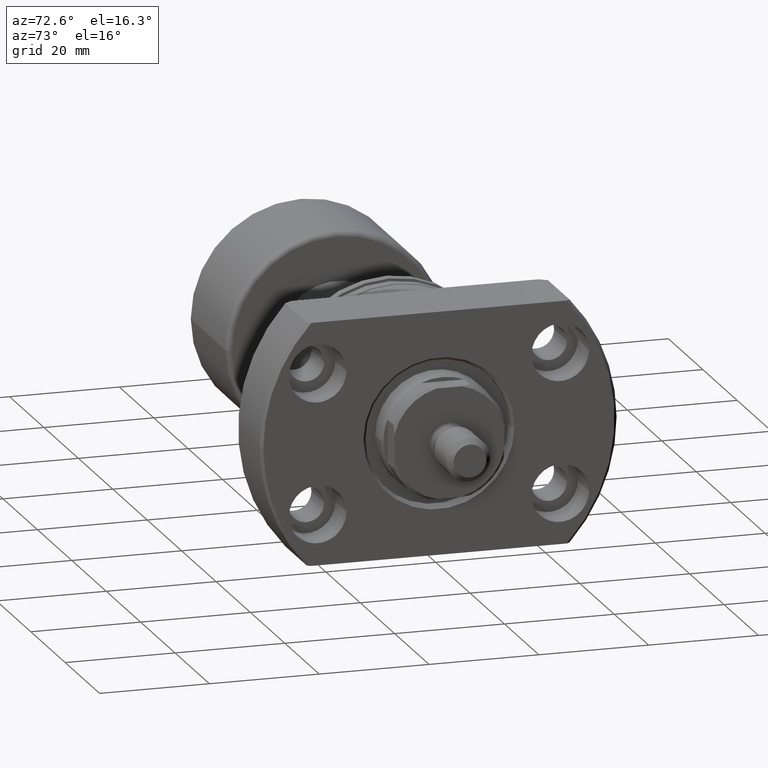
[diagram: clean part render]
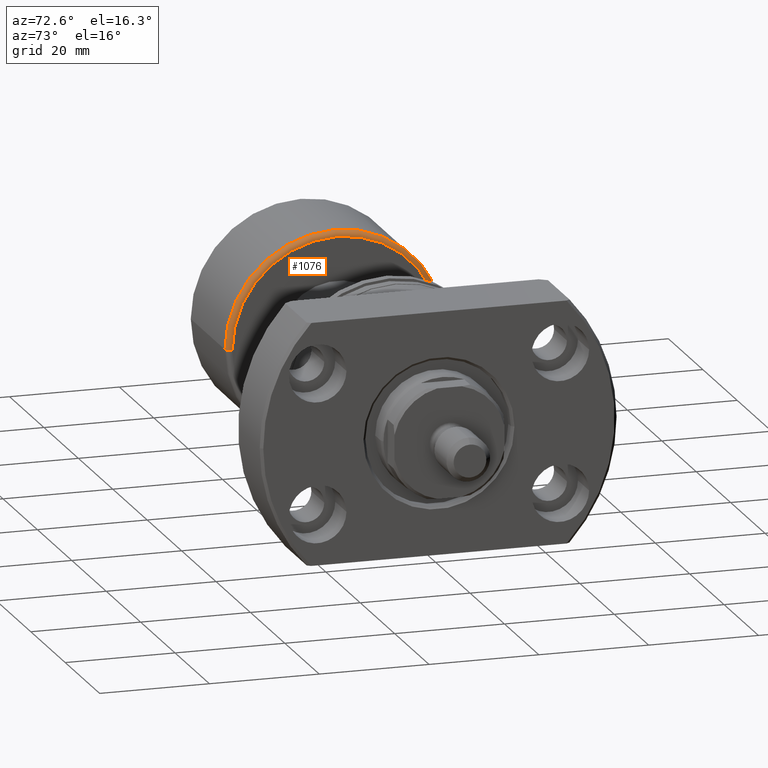
[diagram: same view with one face highlighted and labeled with its STEP entity id]
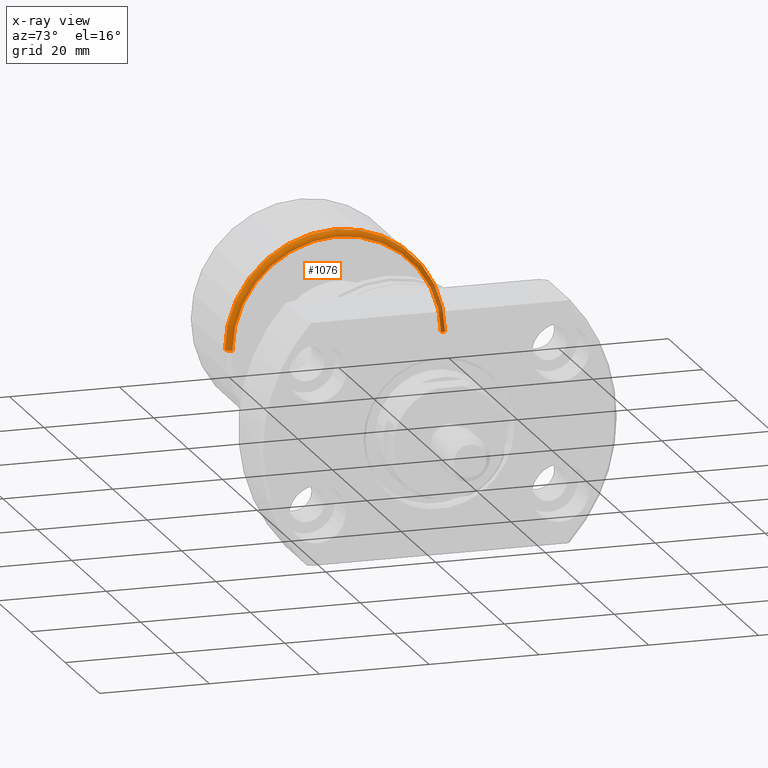
[diagram: x-ray of the same camera — body ghosted, the highlighted face saturated]
A machine part, auxiliary view. The second image highlights one B-rep face of the part: STEP entity #1076.
The next image is the same camera in x-ray: the body ghosted, the highlighted face saturated — about 11% of this face is hidden behind the body in this view.
In plain terms, the highlighted toroidal blend (fillet) surface has major radius 19 mm and minor (blend) radius 1 mm.
Its self-contained STEP definition (entity closure, byte-faithful):
#61 = DIRECTION ( 'NONE',  ( -1.000000000000000000, 0.000000000000000000, 0.000000000000000000 ) ) ;
#359 = DIRECTION ( 'NONE',  ( 0.000000000000000000, 0.000000000000000000, -1.000000000000000000 ) ) ;
#407 = CARTESIAN_POINT ( 'NONE',  ( 21.40000000000000213, 2.288820569227801297E-16, 0.000000000000000000 ) ) ;
#457 = FACE_OUTER_BOUND ( 'NONE', #2569, .T. ) ;
#605 = DIRECTION ( 'NONE',  ( 0.000000000000000000, -1.000000000000000000, 0.000000000000000000 ) ) ;
#680 = CIRCLE ( 'NONE', #986, 1.000000000000000888 ) ;
#696 = CIRCLE ( 'NONE', #2657, 19.00000000000000000 ) ;
#910 = ORIENTED_EDGE ( 'NONE', *, *, #2919, .F. ) ;
#917 = CARTESIAN_POINT ( 'NONE',  ( 21.39999999999999858, -19.00000000000000000, 0.000000000000000000 ) ) ;
#986 = AXIS2_PLACEMENT_3D ( 'NONE', #2551, #1140, #2272 ) ;
#998 = EDGE_CURVE ( 'NONE', #2033, #3638, #696, .T. ) ;
#1076 = ADVANCED_FACE ( 'NONE', ( #457 ), #3019, .T. ) ;
#1140 = DIRECTION ( 'NONE',  ( 1.309811581274509052E-33, -1.224646799147353207E-16, 1.000000000000000000 ) ) ;
#1296 = CARTESIAN_POINT ( 'NONE',  ( 22.39999999999999858, 2.395774801434707739E-16, 0.000000000000000000 ) ) ;
#1330 = DIRECTION ( 'NONE',  ( 1.069542322069065801E-17, -1.000000000000000000, 0.000000000000000000 ) ) ;
#1443 = CIRCLE ( 'NONE', #2399, 20.00000000000000000 ) ;
#1457 = ORIENTED_EDGE ( 'NONE', *, *, #2427, .F. ) ;
#1533 = CARTESIAN_POINT ( 'NONE',  ( 22.39999999999999858, -19.00000000000000000, 0.000000000000000000 ) ) ;
#1627 = ORIENTED_EDGE ( 'NONE', *, *, #2797, .T. ) ;
#1844 = DIRECTION ( 'NONE',  ( 0.000000000000000000, -1.000000000000000000, 0.000000000000000000 ) ) ;
#1902 = DIRECTION ( 'NONE',  ( -1.000000000000000000, -1.069542322069065801E-17, -0.000000000000000000 ) ) ;
#2033 = VERTEX_POINT ( 'NONE', #1533 ) ;
#2166 = DIRECTION ( 'NONE',  ( -1.000000000000000000, -1.069542322069065801E-17, -0.000000000000000000 ) ) ;
#2272 = DIRECTION ( 'NONE',  ( 0.000000000000000000, -1.000000000000000000, -1.224646799147353454E-16 ) ) ;
#2331 = CARTESIAN_POINT ( 'NONE',  ( 21.40000000000000213, 20.00000000000000000, 2.449293598294706513E-15 ) ) ;
#2399 = AXIS2_PLACEMENT_3D ( 'NONE', #407, #2896, #605 ) ;
#2427 = EDGE_CURVE ( 'NONE', #3223, #2452, #1443, .T. ) ;
#2452 = VERTEX_POINT ( 'NONE', #2331 ) ;
#2465 = CIRCLE ( 'NONE', #2519, 1.000000000000000888 ) ;
#2519 = AXIS2_PLACEMENT_3D ( 'NONE', #917, #359, #61 ) ;
#2551 = CARTESIAN_POINT ( 'NONE',  ( 21.39999999999999858, 19.00000000000000000, 2.326828918379970970E-15 ) ) ;
#2569 = EDGE_LOOP ( 'NONE', ( #3639, #1627, #1457, #910 ) ) ;
#2657 = AXIS2_PLACEMENT_3D ( 'NONE', #1296, #1902, #1844 ) ;
#2797 = EDGE_CURVE ( 'NONE', #3638, #2452, #680, .T. ) ;
#2839 = CARTESIAN_POINT ( 'NONE',  ( 22.39999999999999858, 19.00000000000000000, 2.388061258337338939E-15 ) ) ;
#2896 = DIRECTION ( 'NONE',  ( -1.000000000000000000, -1.069542322069065801E-17, -0.000000000000000000 ) ) ;
#2919 = EDGE_CURVE ( 'NONE', #2033, #3223, #2465, .T. ) ;
#2953 = AXIS2_PLACEMENT_3D ( 'NONE', #3576, #2166, #1330 ) ;
#3019 = TOROIDAL_SURFACE ( 'NONE', #2953, 19.00000000000000000, 1.000000000000000888 ) ;
#3223 = VERTEX_POINT ( 'NONE', #3624 ) ;
#3576 = CARTESIAN_POINT ( 'NONE',  ( 21.39999999999999858, 0.000000000000000000, 0.000000000000000000 ) ) ;
#3624 = CARTESIAN_POINT ( 'NONE',  ( 21.40000000000000213, -20.00000000000000000, 0.000000000000000000 ) ) ;
#3638 = VERTEX_POINT ( 'NONE', #2839 ) ;
#3639 = ORIENTED_EDGE ( 'NONE', *, *, #998, .T. ) ;